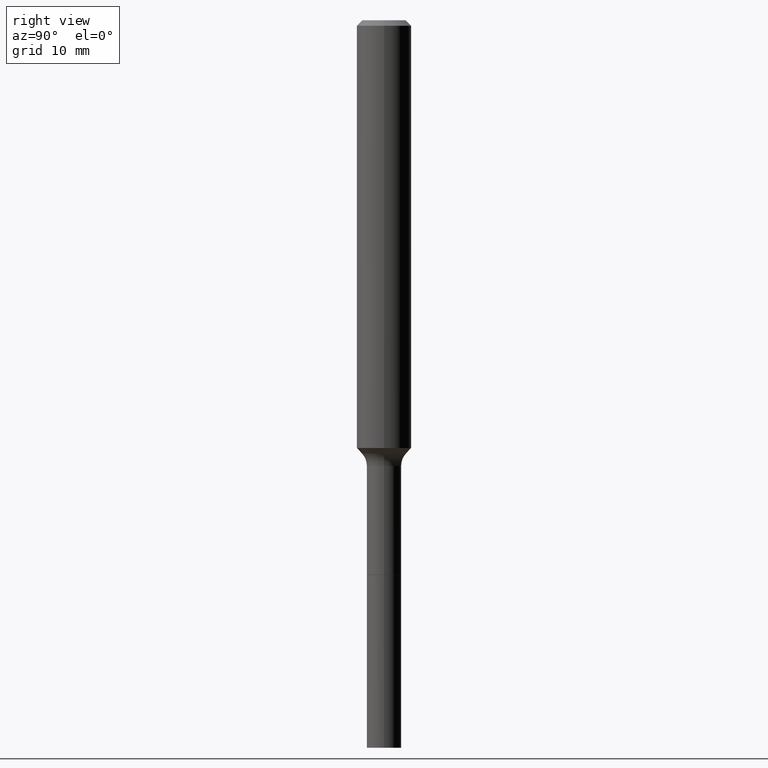
[diagram: clean part render]
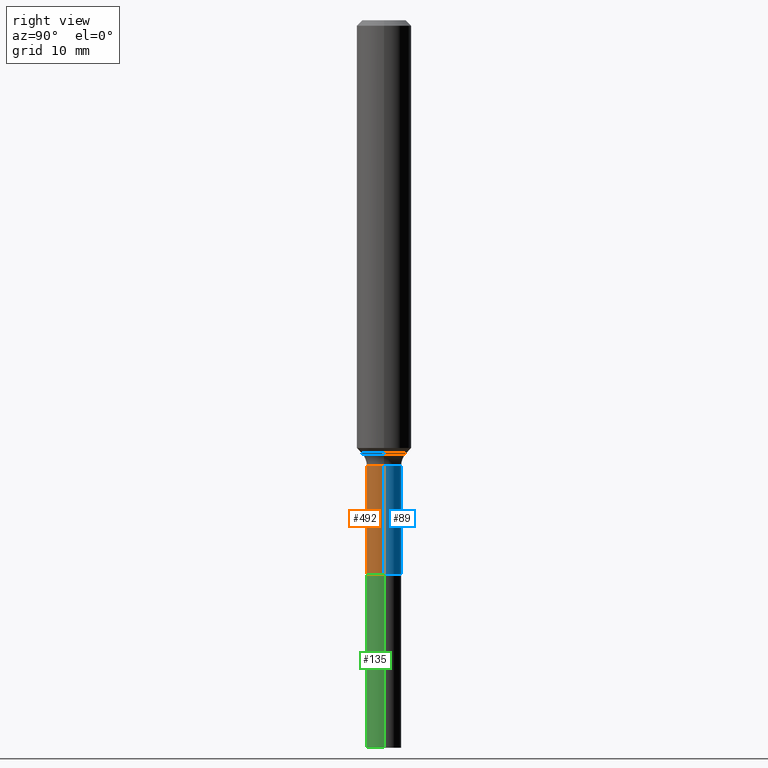
[diagram: same view with three faces highlighted in distinct colors, each labeled with its STEP entity id]
A machine part, right view with three faces highlighted in distinct colors.
Their STEP definitions:

[orange] entity #492 — the highlighted cylindrical surface (edge-blend (fillet) strip) has radius 1.8999 mm, axis along (-0, 0, 1).
#7 = DIRECTION ( 'NONE',  ( -2.445468806185136597E-29, 3.491481338843145583E-15, 1.000000000000000000 ) ) ;
#31 = FACE_OUTER_BOUND ( 'NONE', #79, .T. ) ;
#39 = ORIENTED_EDGE ( 'NONE', *, *, #382, .F. ) ;
#56 = EDGE_CURVE ( 'NONE', #160, #383, #249, .T. ) ;
#79 = EDGE_LOOP ( 'NONE', ( #506, #198, #278, #39 ) ) ;
#80 = DIRECTION ( 'NONE',  ( 1.000000000000000000, -6.982962677686266711E-15, 4.876176775795935793E-29 ) ) ;
#87 = VECTOR ( 'NONE', #343, 39.37007874015748143 ) ;
#133 = DIRECTION ( 'NONE',  ( 1.000000000000000000, -6.982962677686266711E-15, 0.000000000000000000 ) ) ;
#146 = CARTESIAN_POINT ( 'NONE',  ( 5.871815150531132668E-29, -8.383395842696276548E-15, -2.401100000000000456 ) ) ;
#152 = CARTESIAN_POINT ( 'NONE',  ( 0.07479999999999997762, -5.223256082909326032E-16, 3.647380228295358762E-30 ) ) ;
#160 = VERTEX_POINT ( 'NONE', #375 ) ;
#178 = VERTEX_POINT ( 'NONE', #459 ) ;
#180 = CARTESIAN_POINT ( 'NONE',  ( 0.07479999999999994986, -7.259487999722666008E-15, -1.929599999999999982 ) ) ;
#192 = CIRCLE ( 'NONE', #475, 0.07479999999999994986 ) ;
#197 = CYLINDRICAL_SURFACE ( 'NONE', #306, 0.07479999999999997762 ) ;
#198 = ORIENTED_EDGE ( 'NONE', *, *, #290, .T. ) ;
#249 = LINE ( 'NONE', #324, #316 ) ;
#264 = VERTEX_POINT ( 'NONE', #180 ) ;
#271 = DIRECTION ( 'NONE',  ( -2.445468806185136877E-29, 3.491481338843145188E-15, 1.000000000000000000 ) ) ;
#278 = ORIENTED_EDGE ( 'NONE', *, *, #339, .T. ) ;
#285 = CARTESIAN_POINT ( 'NONE',  ( -0.07479999999999994986, -7.028793150715450098E-15, -1.929599999999999982 ) ) ;
#290 = EDGE_CURVE ( 'NONE', #160, #178, #415, .T. ) ;
#292 = CARTESIAN_POINT ( 'NONE',  ( 0.000000000000000000, 0.000000000000000000, 0.000000000000000000 ) ) ;
#306 = AXIS2_PLACEMENT_3D ( 'NONE', #292, #7, #80 ) ;
#316 = VECTOR ( 'NONE', #271, 39.37007874015748143 ) ;
#324 = CARTESIAN_POINT ( 'NONE',  ( -0.07479999999999997762, 5.314859663485547800E-16, -3.679363447510668680E-30 ) ) ;
#339 = EDGE_CURVE ( 'NONE', #178, #264, #345, .T. ) ;
#342 = AXIS2_PLACEMENT_3D ( 'NONE', #146, #451, #494 ) ;
#343 = DIRECTION ( 'NONE',  ( -2.445468806185136877E-29, 3.491481338843145188E-15, 1.000000000000000000 ) ) ;
#345 = LINE ( 'NONE', #152, #87 ) ;
#351 = DIRECTION ( 'NONE',  ( -2.445468806185136597E-29, 3.491481338843145583E-15, 1.000000000000000000 ) ) ;
#375 = CARTESIAN_POINT ( 'NONE',  ( -0.07480000000000000537, -7.028793150715450098E-15, -2.401100000000000456 ) ) ;
#382 = EDGE_CURVE ( 'NONE', #383, #264, #192, .T. ) ;
#383 = VERTEX_POINT ( 'NONE', #285 ) ;
#415 = CIRCLE ( 'NONE', #342, 0.07480000000000000537 ) ;
#451 = DIRECTION ( 'NONE',  ( -2.445468806185136597E-29, 3.491481338843145583E-15, 1.000000000000000000 ) ) ;
#459 = CARTESIAN_POINT ( 'NONE',  ( 0.07480000000000000537, -8.905721450987210927E-15, -2.401100000000000456 ) ) ;
#475 = AXIS2_PLACEMENT_3D ( 'NONE', #483, #351, #133 ) ;
#483 = CARTESIAN_POINT ( 'NONE',  ( 4.718776608414840041E-29, -6.737162391431733996E-15, -1.929599999999999982 ) ) ;
#492 = ADVANCED_FACE ( 'NONE', ( #31 ), #197, .T. ) ;
#494 = DIRECTION ( 'NONE',  ( 1.000000000000000000, -6.982962677686274599E-15, 0.000000000000000000 ) ) ;
#506 = ORIENTED_EDGE ( 'NONE', *, *, #56, .F. ) ;

[blue] entity #89 — the highlighted cylindrical surface (edge-blend (fillet) strip) has radius 1.8999 mm, axis along (-0, 0, 1).
#28 = EDGE_CURVE ( 'NONE', #264, #383, #273, .T. ) ;
#38 = CARTESIAN_POINT ( 'NONE',  ( 5.871815150531132668E-29, -8.383395842696276548E-15, -2.401100000000000456 ) ) ;
#40 = CARTESIAN_POINT ( 'NONE',  ( 0.000000000000000000, 0.000000000000000000, 0.000000000000000000 ) ) ;
#53 = EDGE_CURVE ( 'NONE', #178, #160, #219, .T. ) ;
#56 = EDGE_CURVE ( 'NONE', #160, #383, #249, .T. ) ;
#87 = VECTOR ( 'NONE', #343, 39.37007874015748143 ) ;
#89 = ADVANCED_FACE ( 'NONE', ( #400 ), #430, .T. ) ;
#125 = DIRECTION ( 'NONE',  ( 1.000000000000000000, -6.982962677686266711E-15, 0.000000000000000000 ) ) ;
#136 = ORIENTED_EDGE ( 'NONE', *, *, #53, .T. ) ;
#152 = CARTESIAN_POINT ( 'NONE',  ( 0.07479999999999997762, -5.223256082909326032E-16, 3.647380228295358762E-30 ) ) ;
#155 = EDGE_LOOP ( 'NONE', ( #136, #195, #381, #434 ) ) ;
#160 = VERTEX_POINT ( 'NONE', #375 ) ;
#162 = DIRECTION ( 'NONE',  ( 1.000000000000000000, -6.982962677686266711E-15, 4.876176775795935793E-29 ) ) ;
#178 = VERTEX_POINT ( 'NONE', #459 ) ;
#180 = CARTESIAN_POINT ( 'NONE',  ( 0.07479999999999994986, -7.259487999722666008E-15, -1.929599999999999982 ) ) ;
#191 = AXIS2_PLACEMENT_3D ( 'NONE', #40, #328, #162 ) ;
#195 = ORIENTED_EDGE ( 'NONE', *, *, #56, .T. ) ;
#219 = CIRCLE ( 'NONE', #327, 0.07480000000000000537 ) ;
#230 = AXIS2_PLACEMENT_3D ( 'NONE', #479, #476, #125 ) ;
#240 = DIRECTION ( 'NONE',  ( -2.445468806185136597E-29, 3.491481338843145583E-15, 1.000000000000000000 ) ) ;
#249 = LINE ( 'NONE', #324, #316 ) ;
#264 = VERTEX_POINT ( 'NONE', #180 ) ;
#271 = DIRECTION ( 'NONE',  ( -2.445468806185136877E-29, 3.491481338843145188E-15, 1.000000000000000000 ) ) ;
#273 = CIRCLE ( 'NONE', #230, 0.07479999999999994986 ) ;
#277 = DIRECTION ( 'NONE',  ( 1.000000000000000000, -6.982962677686274599E-15, 0.000000000000000000 ) ) ;
#285 = CARTESIAN_POINT ( 'NONE',  ( -0.07479999999999994986, -7.028793150715450098E-15, -1.929599999999999982 ) ) ;
#316 = VECTOR ( 'NONE', #271, 39.37007874015748143 ) ;
#324 = CARTESIAN_POINT ( 'NONE',  ( -0.07479999999999997762, 5.314859663485547800E-16, -3.679363447510668680E-30 ) ) ;
#327 = AXIS2_PLACEMENT_3D ( 'NONE', #38, #240, #277 ) ;
#328 = DIRECTION ( 'NONE',  ( -2.445468806185136597E-29, 3.491481338843145583E-15, 1.000000000000000000 ) ) ;
#339 = EDGE_CURVE ( 'NONE', #178, #264, #345, .T. ) ;
#343 = DIRECTION ( 'NONE',  ( -2.445468806185136877E-29, 3.491481338843145188E-15, 1.000000000000000000 ) ) ;
#345 = LINE ( 'NONE', #152, #87 ) ;
#375 = CARTESIAN_POINT ( 'NONE',  ( -0.07480000000000000537, -7.028793150715450098E-15, -2.401100000000000456 ) ) ;
#381 = ORIENTED_EDGE ( 'NONE', *, *, #28, .F. ) ;
#383 = VERTEX_POINT ( 'NONE', #285 ) ;
#400 = FACE_OUTER_BOUND ( 'NONE', #155, .T. ) ;
#430 = CYLINDRICAL_SURFACE ( 'NONE', #191, 0.07479999999999997762 ) ;
#434 = ORIENTED_EDGE ( 'NONE', *, *, #339, .F. ) ;
#459 = CARTESIAN_POINT ( 'NONE',  ( 0.07480000000000000537, -8.905721450987210927E-15, -2.401100000000000456 ) ) ;
#476 = DIRECTION ( 'NONE',  ( -2.445468806185136597E-29, 3.491481338843145583E-15, 1.000000000000000000 ) ) ;
#479 = CARTESIAN_POINT ( 'NONE',  ( 4.718776608414840041E-29, -6.737162391431733996E-15, -1.929599999999999982 ) ) ;

[green] entity #135 — the highlighted cylindrical surface (edge-blend (fillet) strip) has radius 1.8999 mm, axis along (-0, 0, 1).
#1 = ORIENTED_EDGE ( 'NONE', *, *, #106, .F. ) ;
#14 = CYLINDRICAL_SURFACE ( 'NONE', #122, 0.07480000000000010252 ) ;
#36 = VERTEX_POINT ( 'NONE', #248 ) ;
#42 = CARTESIAN_POINT ( 'NONE',  ( -0.07480000000000010252, -7.853655617017142483E-15, -2.401600000000000179 ) ) ;
#44 = DIRECTION ( 'NONE',  ( 1.000000000000000000, -6.982962677686261977E-15, 0.000000000000000000 ) ) ;
#73 = ORIENTED_EDGE ( 'NONE', *, *, #376, .F. ) ;
#82 = CARTESIAN_POINT ( 'NONE',  ( 5.873037884934224349E-29, -8.385141583365698841E-15, -2.401600000000000179 ) ) ;
#90 = DIRECTION ( 'NONE',  ( -2.445468806185136877E-29, 3.491481338843145188E-15, 1.000000000000000000 ) ) ;
#102 = CARTESIAN_POINT ( 'NONE',  ( 5.873037884934224349E-29, -8.385141583365698841E-15, -2.401600000000000179 ) ) ;
#105 = DIRECTION ( 'NONE',  ( -2.445468806185136597E-29, 3.491481338843145583E-15, 1.000000000000000000 ) ) ;
#106 = EDGE_CURVE ( 'NONE', #151, #36, #441, .T. ) ;
#121 = ORIENTED_EDGE ( 'NONE', *, *, #216, .T. ) ;
#122 = AXIS2_PLACEMENT_3D ( 'NONE', #102, #139, #369 ) ;
#131 = ORIENTED_EDGE ( 'NONE', *, *, #187, .T. ) ;
#135 = ADVANCED_FACE ( 'NONE', ( #173 ), #14, .T. ) ;
#139 = DIRECTION ( 'NONE',  ( -2.445468806185136597E-29, 3.491481338843145583E-15, 1.000000000000000000 ) ) ;
#151 = VERTEX_POINT ( 'NONE', #252 ) ;
#173 = FACE_OUTER_BOUND ( 'NONE', #511, .T. ) ;
#185 = CIRCLE ( 'NONE', #221, 0.07480000000000019966 ) ;
#186 = CARTESIAN_POINT ( 'NONE',  ( 7.702248551960706711E-29, -1.099676962482037231E-14, -3.149600000000000399 ) ) ;
#187 = EDGE_CURVE ( 'NONE', #487, #36, #449, .T. ) ;
#188 = CARTESIAN_POINT ( 'NONE',  ( -0.07480000000000019966, -9.159469637744476062E-15, -3.149600000000000399 ) ) ;
#216 = EDGE_CURVE ( 'NONE', #307, #487, #185, .T. ) ;
#217 = DIRECTION ( 'NONE',  ( 1.000000000000000000, -6.982962677686256455E-15, 0.000000000000000000 ) ) ;
#221 = AXIS2_PLACEMENT_3D ( 'NONE', #186, #105, #217 ) ;
#248 = CARTESIAN_POINT ( 'NONE',  ( 0.07480000000000000537, -8.907467191656631641E-15, -2.401600000000000179 ) ) ;
#252 = CARTESIAN_POINT ( 'NONE',  ( -0.07480000000000000537, -9.159469637744477640E-15, -2.401600000000000179 ) ) ;
#274 = LINE ( 'NONE', #42, #454 ) ;
#288 = DIRECTION ( 'NONE',  ( -2.445468806185136877E-29, 3.491481338843145188E-15, 1.000000000000000000 ) ) ;
#307 = VERTEX_POINT ( 'NONE', #188 ) ;
#366 = VECTOR ( 'NONE', #288, 39.37007874015748143 ) ;
#369 = DIRECTION ( 'NONE',  ( 1.000000000000000000, -6.982962677686278543E-15, 0.000000000000000000 ) ) ;
#376 = EDGE_CURVE ( 'NONE', #307, #151, #274, .T. ) ;
#392 = CARTESIAN_POINT ( 'NONE',  ( 0.07480000000000019966, -1.151909523311130511E-14, -3.149600000000000399 ) ) ;
#429 = AXIS2_PLACEMENT_3D ( 'NONE', #82, #478, #44 ) ;
#441 = CIRCLE ( 'NONE', #429, 0.07480000000000000537 ) ;
#449 = LINE ( 'NONE', #458, #366 ) ;
#454 = VECTOR ( 'NONE', #90, 39.37007874015748143 ) ;
#458 = CARTESIAN_POINT ( 'NONE',  ( 0.07480000000000010252, -8.907467191656633219E-15, -2.401600000000000179 ) ) ;
#478 = DIRECTION ( 'NONE',  ( -2.445468806185136597E-29, 3.491481338843145583E-15, 1.000000000000000000 ) ) ;
#487 = VERTEX_POINT ( 'NONE', #392 ) ;
#511 = EDGE_LOOP ( 'NONE', ( #73, #121, #131, #1 ) ) ;